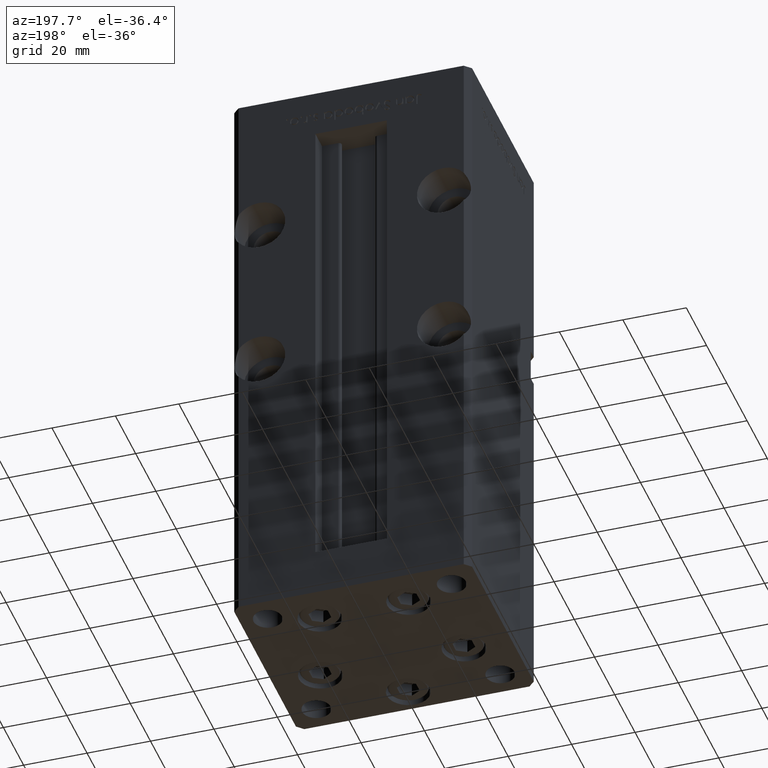
[diagram: clean part render]
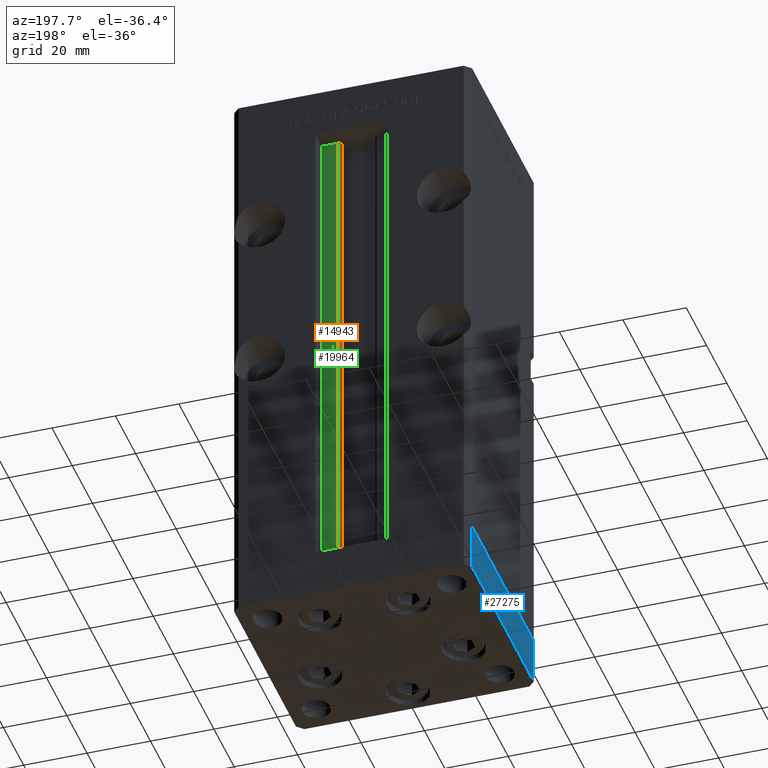
[diagram: same view with three faces highlighted in distinct colors, each labeled with its STEP entity id]
A machine part, auxiliary view with three faces highlighted in distinct colors.
Their STEP definitions:

[orange] entity #14943 — the highlighted cylindrical surface (edge-blend (fillet) strip) has radius 0.9333 mm, axis along (0, 0, 1).
#1397 = VERTEX_POINT ( 'NONE', #44095 ) ;
#1493 = EDGE_CURVE ( 'NONE', #1397, #37988, #20699, .T. ) ;
#3552 = CYLINDRICAL_SURFACE ( 'NONE', #34695, 0.9333333333340008142 ) ;
#4350 = FACE_OUTER_BOUND ( 'NONE', #4953, .T. ) ;
#4953 = EDGE_LOOP ( 'NONE', ( #38832, #22895, #10866, #48472 ) ) ;
#4967 = VECTOR ( 'NONE', #40639, 1000.000000000000000 ) ;
#6940 = CARTESIAN_POINT ( 'NONE',  ( 6.183333333333980164, 26.00000000000000000, 0.000000000000000000 ) ) ;
#8111 = DIRECTION ( 'NONE',  ( 1.000000000000000000, 0.000000000000000000, 0.000000000000000000 ) ) ;
#10866 = ORIENTED_EDGE ( 'NONE', *, *, #1493, .T. ) ;
#11199 = CARTESIAN_POINT ( 'NONE',  ( 6.183333333333980164, 26.00000000000000000, 156.0000000000000000 ) ) ;
#14171 = DIRECTION ( 'NONE',  ( -0.000000000000000000, -0.000000000000000000, -1.000000000000000000 ) ) ;
#14943 = ADVANCED_FACE ( 'NONE', ( #4350 ), #3552, .T. ) ;
#15040 = AXIS2_PLACEMENT_3D ( 'NONE', #39139, #35390, #51788 ) ;
#19718 = CARTESIAN_POINT ( 'NONE',  ( 6.183333333333980164, 26.00000000000000000, 0.000000000000000000 ) ) ;
#20699 = LINE ( 'NONE', #38402, #25708 ) ;
#22029 = DIRECTION ( 'NONE',  ( -0.000000000000000000, -0.000000000000000000, 1.000000000000000000 ) ) ;
#22689 = EDGE_CURVE ( 'NONE', #37988, #32151, #50221, .T. ) ;
#22895 = ORIENTED_EDGE ( 'NONE', *, *, #31400, .F. ) ;
#25708 = VECTOR ( 'NONE', #22029, 1000.000000000000000 ) ;
#28053 = CIRCLE ( 'NONE', #45307, 0.9333333333340008142 ) ;
#28561 = DIRECTION ( 'NONE',  ( -0.000000000000000000, -0.000000000000000000, 1.000000000000000000 ) ) ;
#31400 = EDGE_CURVE ( 'NONE', #1397, #46090, #28053, .T. ) ;
#32151 = VERTEX_POINT ( 'NONE', #11199 ) ;
#34695 = AXIS2_PLACEMENT_3D ( 'NONE', #40131, #28561, #8111 ) ;
#35254 = EDGE_CURVE ( 'NONE', #46090, #32151, #40901, .T. ) ;
#35390 = DIRECTION ( 'NONE',  ( 0.000000000000000000, 0.000000000000000000, -1.000000000000000000 ) ) ;
#37988 = VERTEX_POINT ( 'NONE', #46238 ) ;
#38402 = CARTESIAN_POINT ( 'NONE',  ( 5.375042956467928512, 24.59999999999899245, 0.000000000000000000 ) ) ;
#38832 = ORIENTED_EDGE ( 'NONE', *, *, #35254, .F. ) ;
#39139 = CARTESIAN_POINT ( 'NONE',  ( 6.183333333333980164, 25.06666666666599852, 156.0000000000000000 ) ) ;
#40131 = CARTESIAN_POINT ( 'NONE',  ( 6.183333333333980164, 25.06666666666599852, 0.000000000000000000 ) ) ;
#40639 = DIRECTION ( 'NONE',  ( -0.000000000000000000, -0.000000000000000000, 1.000000000000000000 ) ) ;
#40901 = LINE ( 'NONE', #19718, #4967 ) ;
#43451 = DIRECTION ( 'NONE',  ( 1.000000000000000000, 0.000000000000000000, 0.000000000000000000 ) ) ;
#44095 = CARTESIAN_POINT ( 'NONE',  ( 5.375042956467928512, 24.59999999999899245, 0.000000000000000000 ) ) ;
#45307 = AXIS2_PLACEMENT_3D ( 'NONE', #51267, #14171, #43451 ) ;
#46090 = VERTEX_POINT ( 'NONE', #6940 ) ;
#46238 = CARTESIAN_POINT ( 'NONE',  ( 5.375042956467929400, 24.59999999999899600, 156.0000000000000000 ) ) ;
#48472 = ORIENTED_EDGE ( 'NONE', *, *, #22689, .T. ) ;
#50221 = CIRCLE ( 'NONE', #15040, 0.9333333333340008142 ) ;
#51267 = CARTESIAN_POINT ( 'NONE',  ( 6.183333333333980164, 25.06666666666599852, 0.000000000000000000 ) ) ;
#51788 = DIRECTION ( 'NONE',  ( 1.000000000000000000, 3.717264591376213546E-15, 0.000000000000000000 ) ) ;

[blue] entity #27275 — the highlighted planar face has unit normal (-1, -0, 0).
#256 = CARTESIAN_POINT ( 'NONE',  ( 37.49999999999992184, 30.50000000000001066, 0.000000000000000000 ) ) ;
#731 = LINE ( 'NONE', #28710, #33614 ) ;
#765 = CARTESIAN_POINT ( 'NONE',  ( 37.50000000000001421, -30.50000000000000711, 0.000000000000000000 ) ) ;
#1305 = PLANE ( 'NONE',  #22944 ) ;
#6610 = LINE ( 'NONE', #39421, #14859 ) ;
#8524 = EDGE_CURVE ( 'NONE', #49814, #37012, #731, .T. ) ;
#9057 = DIRECTION ( 'NONE',  ( -1.478780668045802821E-15, 1.000000000000000000, 0.000000000000000000 ) ) ;
#9289 = CARTESIAN_POINT ( 'NONE',  ( 37.50000000000001421, -30.50000000000000711, 0.000000000000000000 ) ) ;
#10759 = VECTOR ( 'NONE', #38614, 1000.000000000000000 ) ;
#13133 = EDGE_CURVE ( 'NONE', #18933, #45988, #53209, .T. ) ;
#13163 = DIRECTION ( 'NONE',  ( 1.000000000000000000, 1.478780668045803018E-15, -0.000000000000000000 ) ) ;
#14859 = VECTOR ( 'NONE', #31361, 1000.000000000000000 ) ;
#16229 = EDGE_CURVE ( 'NONE', #37012, #45988, #6610, .T. ) ;
#18444 = ORIENTED_EDGE ( 'NONE', *, *, #23569, .F. ) ;
#18696 = ORIENTED_EDGE ( 'NONE', *, *, #16229, .T. ) ;
#18933 = VERTEX_POINT ( 'NONE', #9289 ) ;
#21709 = CARTESIAN_POINT ( 'NONE',  ( 37.50000000000001421, -30.50000000000000711, -15.00000000000000000 ) ) ;
#21776 = CARTESIAN_POINT ( 'NONE',  ( 37.50000000000001421, -30.50000000000000711, -15.00000000000000000 ) ) ;
#22944 = AXIS2_PLACEMENT_3D ( 'NONE', #21776, #13163, #37609 ) ;
#23569 = EDGE_CURVE ( 'NONE', #49814, #18933, #46685, .T. ) ;
#25800 = FACE_OUTER_BOUND ( 'NONE', #28363, .T. ) ;
#27275 = ADVANCED_FACE ( 'NONE', ( #25800 ), #1305, .T. ) ;
#28363 = EDGE_LOOP ( 'NONE', ( #31173, #18444, #44193, #18696 ) ) ;
#28710 = CARTESIAN_POINT ( 'NONE',  ( 37.50000000000001421, -30.50000000000000711, -15.00000000000000000 ) ) ;
#29005 = DIRECTION ( 'NONE',  ( -1.478780668045802821E-15, 1.000000000000000000, 0.000000000000000000 ) ) ;
#29459 = VECTOR ( 'NONE', #29005, 1000.000000000000000 ) ;
#31173 = ORIENTED_EDGE ( 'NONE', *, *, #13133, .F. ) ;
#31361 = DIRECTION ( 'NONE',  ( 0.000000000000000000, 0.000000000000000000, 1.000000000000000000 ) ) ;
#33614 = VECTOR ( 'NONE', #9057, 1000.000000000000000 ) ;
#36371 = CARTESIAN_POINT ( 'NONE',  ( 37.50000000000001421, -30.50000000000000711, -15.00000000000000000 ) ) ;
#37012 = VERTEX_POINT ( 'NONE', #50406 ) ;
#37609 = DIRECTION ( 'NONE',  ( -1.478780668045803018E-15, 1.000000000000000000, 0.000000000000000000 ) ) ;
#38614 = DIRECTION ( 'NONE',  ( 0.000000000000000000, 0.000000000000000000, 1.000000000000000000 ) ) ;
#39421 = CARTESIAN_POINT ( 'NONE',  ( 37.49999999999992184, 30.50000000000001066, -15.00000000000000000 ) ) ;
#44193 = ORIENTED_EDGE ( 'NONE', *, *, #8524, .T. ) ;
#45988 = VERTEX_POINT ( 'NONE', #256 ) ;
#46685 = LINE ( 'NONE', #21709, #10759 ) ;
#49814 = VERTEX_POINT ( 'NONE', #36371 ) ;
#50406 = CARTESIAN_POINT ( 'NONE',  ( 37.49999999999992184, 30.50000000000001066, -15.00000000000000000 ) ) ;
#53209 = LINE ( 'NONE', #765, #29459 ) ;

[green] entity #19964 — the highlighted planar face has unit normal (0, -1, 0).
#2054 = CARTESIAN_POINT ( 'NONE',  ( 6.183333333333980164, 26.00000000000000000, 0.000000000000000000 ) ) ;
#2919 = VERTEX_POINT ( 'NONE', #4244 ) ;
#4244 = CARTESIAN_POINT ( 'NONE',  ( 11.24999999999998046, 26.00000000000000000, 156.0000000000000000 ) ) ;
#4967 = VECTOR ( 'NONE', #40639, 1000.000000000000000 ) ;
#6807 = ORIENTED_EDGE ( 'NONE', *, *, #24905, .F. ) ;
#6940 = CARTESIAN_POINT ( 'NONE',  ( 6.183333333333980164, 26.00000000000000000, 0.000000000000000000 ) ) ;
#8439 = CARTESIAN_POINT ( 'NONE',  ( 11.24999999999998046, 26.00000000000000000, 0.000000000000000000 ) ) ;
#10993 = LINE ( 'NONE', #43525, #43571 ) ;
#11199 = CARTESIAN_POINT ( 'NONE',  ( 6.183333333333980164, 26.00000000000000000, 156.0000000000000000 ) ) ;
#15273 = DIRECTION ( 'NONE',  ( -1.000000000000000000, 0.000000000000000000, 0.000000000000000000 ) ) ;
#16826 = VECTOR ( 'NONE', #15273, 1000.000000000000000 ) ;
#17409 = ORIENTED_EDGE ( 'NONE', *, *, #47954, .F. ) ;
#19718 = CARTESIAN_POINT ( 'NONE',  ( 6.183333333333980164, 26.00000000000000000, 0.000000000000000000 ) ) ;
#19964 = ADVANCED_FACE ( 'NONE', ( #42920 ), #47496, .F. ) ;
#20457 = EDGE_LOOP ( 'NONE', ( #17409, #35079, #24728, #6807 ) ) ;
#23694 = VERTEX_POINT ( 'NONE', #8439 ) ;
#24728 = ORIENTED_EDGE ( 'NONE', *, *, #35254, .T. ) ;
#24905 = EDGE_CURVE ( 'NONE', #2919, #32151, #52363, .T. ) ;
#27118 = CARTESIAN_POINT ( 'NONE',  ( 0.000000000000000000, 26.00000000000000000, 156.0000000000000000 ) ) ;
#27403 = DIRECTION ( 'NONE',  ( 1.000000000000000000, 0.000000000000000000, 0.000000000000000000 ) ) ;
#28372 = EDGE_CURVE ( 'NONE', #46090, #23694, #10993, .T. ) ;
#29405 = CARTESIAN_POINT ( 'NONE',  ( 11.24999999999998046, 26.00000000000000000, 0.000000000000000000 ) ) ;
#32151 = VERTEX_POINT ( 'NONE', #11199 ) ;
#35079 = ORIENTED_EDGE ( 'NONE', *, *, #28372, .F. ) ;
#35254 = EDGE_CURVE ( 'NONE', #46090, #32151, #40901, .T. ) ;
#37196 = LINE ( 'NONE', #29405, #42073 ) ;
#38889 = DIRECTION ( 'NONE',  ( 0.000000000000000000, -1.000000000000000000, 0.000000000000000000 ) ) ;
#40639 = DIRECTION ( 'NONE',  ( -0.000000000000000000, -0.000000000000000000, 1.000000000000000000 ) ) ;
#40693 = DIRECTION ( 'NONE',  ( -0.000000000000000000, -0.000000000000000000, 1.000000000000000000 ) ) ;
#40901 = LINE ( 'NONE', #19718, #4967 ) ;
#42073 = VECTOR ( 'NONE', #40693, 1000.000000000000000 ) ;
#42920 = FACE_OUTER_BOUND ( 'NONE', #20457, .T. ) ;
#43525 = CARTESIAN_POINT ( 'NONE',  ( 6.183333333333980164, 26.00000000000000000, 0.000000000000000000 ) ) ;
#43571 = VECTOR ( 'NONE', #27403, 1000.000000000000000 ) ;
#46090 = VERTEX_POINT ( 'NONE', #6940 ) ;
#46688 = DIRECTION ( 'NONE',  ( 0.000000000000000000, -0.000000000000000000, -1.000000000000000000 ) ) ;
#47496 = PLANE ( 'NONE',  #47583 ) ;
#47583 = AXIS2_PLACEMENT_3D ( 'NONE', #2054, #38889, #46688 ) ;
#47954 = EDGE_CURVE ( 'NONE', #23694, #2919, #37196, .T. ) ;
#52363 = LINE ( 'NONE', #27118, #16826 ) ;